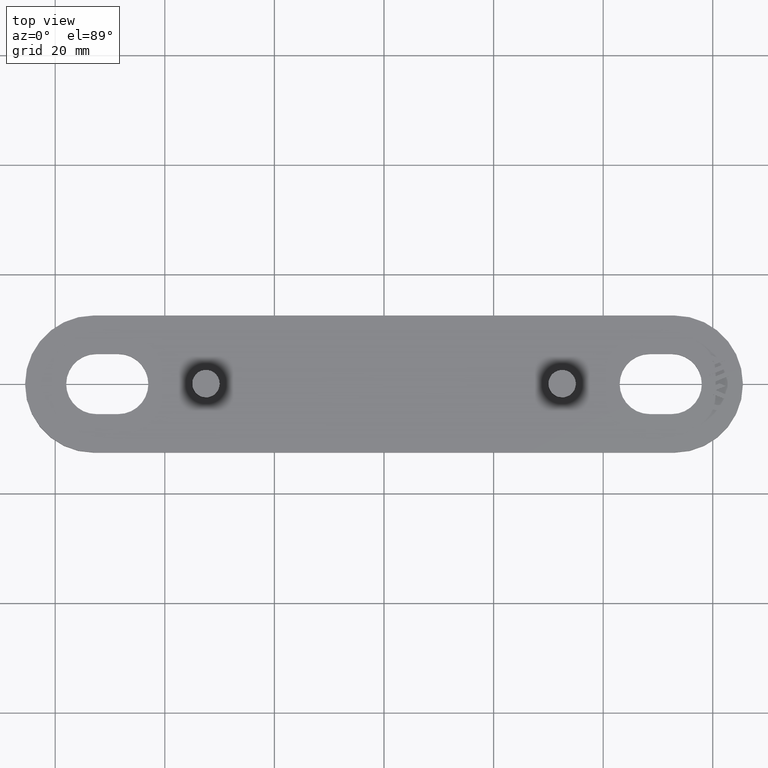
[diagram: clean part render]
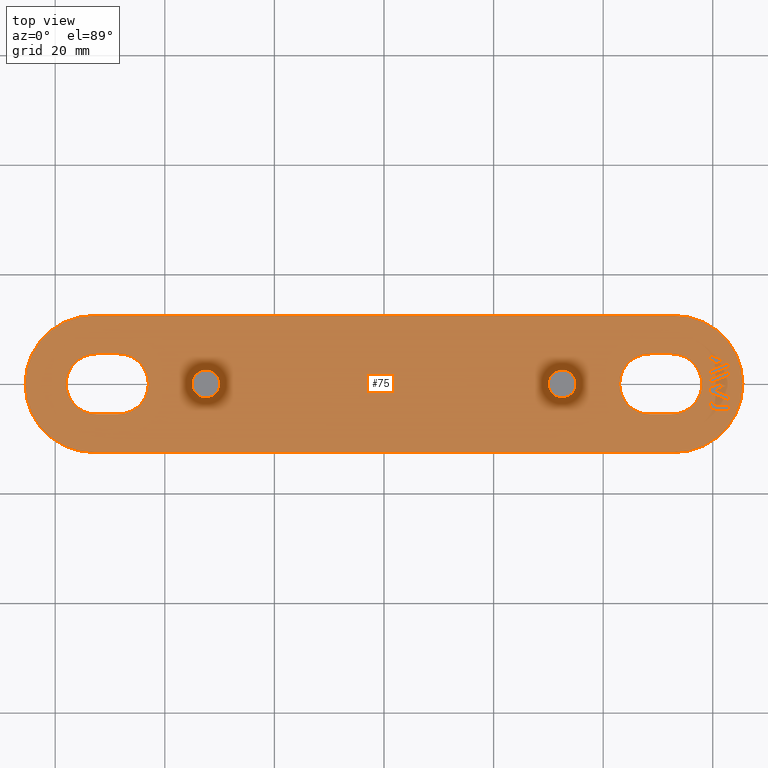
[diagram: same view with one face highlighted and labeled with its STEP entity id]
A machine part, top view. The second image highlights one B-rep face of the part: STEP entity #75.
In plain terms, the highlighted planar face has unit normal (0, -0, -1).
Its self-contained STEP definition (entity closure, byte-faithful):
#75 = ADVANCED_FACE( '', ( #147, #148, #149, #150, #151, #152, #153, #154, #155, #156 ), #157, .F. );
#147 = FACE_BOUND( '', #304, .T. );
#148 = FACE_BOUND( '', #305, .T. );
#149 = FACE_BOUND( '', #306, .T. );
#150 = FACE_BOUND( '', #307, .T. );
#151 = FACE_OUTER_BOUND( '', #308, .T. );
#152 = FACE_BOUND( '', #309, .T. );
#153 = FACE_BOUND( '', #310, .T. );
#154 = FACE_BOUND( '', #311, .T. );
#155 = FACE_BOUND( '', #312, .T. );
#156 = FACE_BOUND( '', #313, .T. );
#157 = PLANE( '', #314 );
#304 = EDGE_LOOP( '', ( #461, #462, #463, #464, #465, #466, #467 ) );
#305 = EDGE_LOOP( '', ( #468, #469, #470, #471 ) );
#306 = EDGE_LOOP( '', ( #472, #473, #474, #475, #476, #477 ) );
#307 = EDGE_LOOP( '', ( #478 ) );
#308 = EDGE_LOOP( '', ( #479, #480, #481, #482, #483, #484 ) );
#309 = EDGE_LOOP( '', ( #485 ) );
#310 = EDGE_LOOP( '', ( #486, #487, #488, #489, #490, #491 ) );
#311 = EDGE_LOOP( '', ( #492, #493, #494, #495, #496 ) );
#312 = EDGE_LOOP( '', ( #497, #498, #499, #500 ) );
#313 = EDGE_LOOP( '', ( #501, #502, #503, #504, #505, #506, #507, #508 ) );
#314 = AXIS2_PLACEMENT_3D( '', #509, #510, #511 );
#461 = ORIENTED_EDGE( '', *, *, #1030, .F. );
#462 = ORIENTED_EDGE( '', *, *, #1031, .F. );
#463 = ORIENTED_EDGE( '', *, *, #1032, .F. );
#464 = ORIENTED_EDGE( '', *, *, #1033, .F. );
#465 = ORIENTED_EDGE( '', *, *, #1034, .F. );
#466 = ORIENTED_EDGE( '', *, *, #1035, .F. );
#467 = ORIENTED_EDGE( '', *, *, #1036, .F. );
#468 = ORIENTED_EDGE( '', *, *, #1037, .F. );
#469 = ORIENTED_EDGE( '', *, *, #1038, .F. );
#470 = ORIENTED_EDGE( '', *, *, #1039, .F. );
#471 = ORIENTED_EDGE( '', *, *, #1040, .F. );
#472 = ORIENTED_EDGE( '', *, *, #1041, .F. );
#473 = ORIENTED_EDGE( '', *, *, #1042, .F. );
#474 = ORIENTED_EDGE( '', *, *, #1043, .F. );
#475 = ORIENTED_EDGE( '', *, *, #1044, .F. );
#476 = ORIENTED_EDGE( '', *, *, #1045, .F. );
#477 = ORIENTED_EDGE( '', *, *, #1046, .F. );
#478 = ORIENTED_EDGE( '', *, *, #1047, .F. );
#479 = ORIENTED_EDGE( '', *, *, #1048, .F. );
#480 = ORIENTED_EDGE( '', *, *, #1049, .F. );
#481 = ORIENTED_EDGE( '', *, *, #1050, .F. );
#482 = ORIENTED_EDGE( '', *, *, #1051, .F. );
#483 = ORIENTED_EDGE( '', *, *, #1052, .F. );
#484 = ORIENTED_EDGE( '', *, *, #1053, .F. );
#485 = ORIENTED_EDGE( '', *, *, #1054, .F. );
#486 = ORIENTED_EDGE( '', *, *, #1055, .F. );
#487 = ORIENTED_EDGE( '', *, *, #1056, .F. );
#488 = ORIENTED_EDGE( '', *, *, #1057, .F. );
#489 = ORIENTED_EDGE( '', *, *, #1058, .F. );
#490 = ORIENTED_EDGE( '', *, *, #1059, .F. );
#491 = ORIENTED_EDGE( '', *, *, #1060, .F. );
#492 = ORIENTED_EDGE( '', *, *, #1061, .F. );
#493 = ORIENTED_EDGE( '', *, *, #1062, .F. );
#494 = ORIENTED_EDGE( '', *, *, #1063, .F. );
#495 = ORIENTED_EDGE( '', *, *, #1064, .F. );
#496 = ORIENTED_EDGE( '', *, *, #1065, .F. );
#497 = ORIENTED_EDGE( '', *, *, #1066, .F. );
#498 = ORIENTED_EDGE( '', *, *, #1067, .F. );
#499 = ORIENTED_EDGE( '', *, *, #1068, .F. );
#500 = ORIENTED_EDGE( '', *, *, #1069, .F. );
#501 = ORIENTED_EDGE( '', *, *, #1070, .F. );
#502 = ORIENTED_EDGE( '', *, *, #1071, .F. );
#503 = ORIENTED_EDGE( '', *, *, #1072, .F. );
#504 = ORIENTED_EDGE( '', *, *, #1073, .F. );
#505 = ORIENTED_EDGE( '', *, *, #1074, .F. );
#506 = ORIENTED_EDGE( '', *, *, #1075, .F. );
#507 = ORIENTED_EDGE( '', *, *, #1076, .F. );
#508 = ORIENTED_EDGE( '', *, *, #1077, .F. );
#509 = CARTESIAN_POINT( '', ( 53.0000000000000, 1.83690953073356E-016, 2.99999999999999 ) );
#510 = DIRECTION( '', ( 0.000000000000000, -6.12303176911189E-017, -1.00000000000000 ) );
#511 = DIRECTION( '', ( 6.12303176911189E-017, 1.00000000000000, -6.12303176911189E-017 ) );
#1030 = EDGE_CURVE( '', #1208, #1209, #1210, .T. );
#1031 = EDGE_CURVE( '', #1211, #1208, #1212, .T. );
#1032 = EDGE_CURVE( '', #1213, #1211, #1214, .T. );
#1033 = EDGE_CURVE( '', #1215, #1213, #1216, .T. );
#1034 = EDGE_CURVE( '', #1217, #1215, #1218, .T. );
#1035 = EDGE_CURVE( '', #1219, #1217, #1220, .T. );
#1036 = EDGE_CURVE( '', #1209, #1219, #1221, .T. );
#1037 = EDGE_CURVE( '', #1222, #1223, #1224, .T. );
#1038 = EDGE_CURVE( '', #1225, #1222, #1226, .T. );
#1039 = EDGE_CURVE( '', #1227, #1225, #1228, .T. );
#1040 = EDGE_CURVE( '', #1223, #1227, #1229, .T. );
#1041 = EDGE_CURVE( '', #1230, #1231, #1232, .T. );
#1042 = EDGE_CURVE( '', #1233, #1230, #1234, .T. );
#1043 = EDGE_CURVE( '', #1235, #1233, #1236, .T. );
#1044 = EDGE_CURVE( '', #1237, #1235, #1238, .T. );
#1045 = EDGE_CURVE( '', #1239, #1237, #1240, .T. );
#1046 = EDGE_CURVE( '', #1231, #1239, #1241, .T. );
#1047 = EDGE_CURVE( '', #1242, #1242, #1243, .T. );
#1048 = EDGE_CURVE( '', #1244, #1245, #1246, .T. );
#1049 = EDGE_CURVE( '', #1247, #1244, #1248, .T. );
#1050 = EDGE_CURVE( '', #1249, #1247, #1250, .T. );
#1051 = EDGE_CURVE( '', #1251, #1249, #1252, .T. );
#1052 = EDGE_CURVE( '', #1253, #1251, #1254, .T. );
#1053 = EDGE_CURVE( '', #1245, #1253, #1255, .T. );
#1054 = EDGE_CURVE( '', #1256, #1256, #1257, .T. );
#1055 = EDGE_CURVE( '', #1258, #1259, #1260, .T. );
#1056 = EDGE_CURVE( '', #1261, #1258, #1262, .T. );
#1057 = EDGE_CURVE( '', #1263, #1261, #1264, .T. );
#1058 = EDGE_CURVE( '', #1265, #1263, #1266, .T. );
#1059 = EDGE_CURVE( '', #1267, #1265, #1268, .T. );
#1060 = EDGE_CURVE( '', #1259, #1267, #1269, .T. );
#1061 = EDGE_CURVE( '', #1270, #1271, #1272, .T. );
#1062 = EDGE_CURVE( '', #1273, #1270, #1274, .T. );
#1063 = EDGE_CURVE( '', #1275, #1273, #1276, .T. );
#1064 = EDGE_CURVE( '', #1277, #1275, #1278, .T. );
#1065 = EDGE_CURVE( '', #1271, #1277, #1279, .T. );
#1066 = EDGE_CURVE( '', #1280, #1281, #1282, .T. );
#1067 = EDGE_CURVE( '', #1283, #1280, #1284, .T. );
#1068 = EDGE_CURVE( '', #1285, #1283, #1286, .T. );
#1069 = EDGE_CURVE( '', #1281, #1285, #1287, .T. );
#1070 = EDGE_CURVE( '', #1288, #1289, #1290, .T. );
#1071 = EDGE_CURVE( '', #1291, #1288, #1292, .T. );
#1072 = EDGE_CURVE( '', #1293, #1291, #1294, .T. );
#1073 = EDGE_CURVE( '', #1295, #1293, #1296, .T. );
#1074 = EDGE_CURVE( '', #1297, #1295, #1298, .T. );
#1075 = EDGE_CURVE( '', #1299, #1297, #1300, .T. );
#1076 = EDGE_CURVE( '', #1301, #1299, #1302, .T. );
#1077 = EDGE_CURVE( '', #1289, #1301, #1303, .T. );
#1208 = VERTEX_POINT( '', #1506 );
#1209 = VERTEX_POINT( '', #1507 );
#1210 = LINE( '', #1508, #1509 );
#1211 = VERTEX_POINT( '', #1510 );
#1212 = LINE( '', #1511, #1512 );
#1213 = VERTEX_POINT( '', #1513 );
#1214 = LINE( '', #1514, #1515 );
#1215 = VERTEX_POINT( '', #1516 );
#1216 = LINE( '', #1517, #1518 );
#1217 = VERTEX_POINT( '', #1519 );
#1218 = LINE( '', #1520, #1521 );
#1219 = VERTEX_POINT( '', #1522 );
#1220 = LINE( '', #1523, #1524 );
#1221 = LINE( '', #1525, #1526 );
#1222 = VERTEX_POINT( '', #1527 );
#1223 = VERTEX_POINT( '', #1528 );
#1224 = LINE( '', #1529, #1530 );
#1225 = VERTEX_POINT( '', #1531 );
#1226 = LINE( '', #1532, #1533 );
#1227 = VERTEX_POINT( '', #1534 );
#1228 = LINE( '', #1535, #1536 );
#1229 = LINE( '', #1537, #1538 );
#1230 = VERTEX_POINT( '', #1539 );
#1231 = VERTEX_POINT( '', #1540 );
#1232 = LINE( '', #1541, #1542 );
#1233 = VERTEX_POINT( '', #1543 );
#1234 = CIRCLE( '', #1544, 5.50000000000000 );
#1235 = VERTEX_POINT( '', #1545 );
#1236 = CIRCLE( '', #1546, 5.50000000000000 );
#1237 = VERTEX_POINT( '', #1547 );
#1238 = LINE( '', #1548, #1549 );
#1239 = VERTEX_POINT( '', #1550 );
#1240 = CIRCLE( '', #1551, 5.50000000000000 );
#1241 = CIRCLE( '', #1552, 5.50000000000001 );
#1242 = VERTEX_POINT( '', #1553 );
#1243 = CIRCLE( '', #1554, 2.54363766232055 );
#1244 = VERTEX_POINT( '', #1555 );
#1245 = VERTEX_POINT( '', #1556 );
#1246 = LINE( '', #1557, #1558 );
#1247 = VERTEX_POINT( '', #1559 );
#1248 = CIRCLE( '', #1560, 12.5000000000000 );
#1249 = VERTEX_POINT( '', #1561 );
#1250 = CIRCLE( '', #1562, 12.5000000000000 );
#1251 = VERTEX_POINT( '', #1563 );
#1252 = LINE( '', #1564, #1565 );
#1253 = VERTEX_POINT( '', #1566 );
#1254 = CIRCLE( '', #1567, 12.5000000000000 );
#1255 = CIRCLE( '', #1568, 12.5000000000000 );
#1256 = VERTEX_POINT( '', #1569 );
#1257 = CIRCLE( '', #1570, 2.54363766232054 );
#1258 = VERTEX_POINT( '', #1571 );
#1259 = VERTEX_POINT( '', #1572 );
#1260 = LINE( '', #1573, #1574 );
#1261 = VERTEX_POINT( '', #1575 );
#1262 = CIRCLE( '', #1576, 5.50000000000000 );
#1263 = VERTEX_POINT( '', #1577 );
#1264 = CIRCLE( '', #1578, 5.50000000000000 );
#1265 = VERTEX_POINT( '', #1579 );
#1266 = LINE( '', #1580, #1581 );
#1267 = VERTEX_POINT( '', #1582 );
#1268 = CIRCLE( '', #1583, 5.50000000000000 );
#1269 = CIRCLE( '', #1584, 5.50000000000001 );
#1270 = VERTEX_POINT( '', #1585 );
#1271 = VERTEX_POINT( '', #1586 );
#1272 = LINE( '', #1587, #1588 );
#1273 = VERTEX_POINT( '', #1589 );
#1274 = LINE( '', #1590, #1591 );
#1275 = VERTEX_POINT( '', #1592 );
#1276 = LINE( '', #1593, #1594 );
#1277 = VERTEX_POINT( '', #1595 );
#1278 = LINE( '', #1596, #1597 );
#1279 = LINE( '', #1598, #1599 );
#1280 = VERTEX_POINT( '', #1600 );
#1281 = VERTEX_POINT( '', #1601 );
#1282 = LINE( '', #1602, #1603 );
#1283 = VERTEX_POINT( '', #1604 );
#1284 = LINE( '', #1605, #1606 );
#1285 = VERTEX_POINT( '', #1607 );
#1286 = LINE( '', #1608, #1609 );
#1287 = LINE( '', #1610, #1611 );
#1288 = VERTEX_POINT( '', #1612 );
#1289 = VERTEX_POINT( '', #1613 );
#1290 = CIRCLE( '', #1614, 1.19999999999999 );
#1291 = VERTEX_POINT( '', #1615 );
#1292 = LINE( '', #1616, #1617 );
#1293 = VERTEX_POINT( '', #1618 );
#1294 = LINE( '', #1619, #1620 );
#1295 = VERTEX_POINT( '', #1621 );
#1296 = LINE( '', #1622, #1623 );
#1297 = VERTEX_POINT( '', #1624 );
#1298 = CIRCLE( '', #1625, 0.800000000000002 );
#1299 = VERTEX_POINT( '', #1626 );
#1300 = LINE( '', #1627, #1628 );
#1301 = VERTEX_POINT( '', #1629 );
#1302 = LINE( '', #1630, #1631 );
#1303 = LINE( '', #1632, #1633 );
#1506 = CARTESIAN_POINT( '', ( 59.4000000000000, -1.65153815900081, 2.99999999999999 ) );
#1507 = CARTESIAN_POINT( '', ( 62.9973661704647, -3.10489558569054, 2.99999999999999 ) );
#1508 = CARTESIAN_POINT( '', ( 59.4000000000000, -1.65153815900081, 2.99999999999999 ) );
#1509 = VECTOR( '', #1950, 1000.00000000000 );
#1510 = CARTESIAN_POINT( '', ( 59.4000000000000, -0.668868987414770, 2.99999999999999 ) );
#1511 = CARTESIAN_POINT( '', ( 59.4000000000000, -0.668868987414772, 2.99999999999999 ) );
#1512 = VECTOR( '', #1951, 1000.00000000000 );
#1513 = CARTESIAN_POINT( '', ( 61.2327570440905, 0.0717422425350015, 2.99999999999999 ) );
#1514 = CARTESIAN_POINT( '', ( 61.2327570440905, 0.0717422425350067, 2.99999999999999 ) );
#1515 = VECTOR( '', #1952, 1000.00000000000 );
#1516 = CARTESIAN_POINT( '', ( 62.3833737475896, -0.393055647481195, 2.99999999999999 ) );
#1517 = CARTESIAN_POINT( '', ( 62.3833737475896, -0.393055647481199, 2.99999999999999 ) );
#1518 = VECTOR( '', #1953, 1000.00000000000 );
#1519 = CARTESIAN_POINT( '', ( 60.4849571645034, -1.16010139340525, 2.99999999999999 ) );
#1520 = CARTESIAN_POINT( '', ( 60.4849571645034, -1.16010139340525, 2.99999999999999 ) );
#1521 = VECTOR( '', #1954, 1000.00000000000 );
#1522 = CARTESIAN_POINT( '', ( 62.9973661704647, -2.17529980565815, 2.99999999999999 ) );
#1523 = CARTESIAN_POINT( '', ( 62.9973661704647, -2.17529980565814, 2.99999999999999 ) );
#1524 = VECTOR( '', #1955, 1000.00000000000 );
#1525 = CARTESIAN_POINT( '', ( 62.9973661704647, -3.10489558569054, 2.99999999999999 ) );
#1526 = VECTOR( '', #1956, 1000.00000000000 );
#1527 = CARTESIAN_POINT( '', ( 59.4000000000000, 1.59847678860037, 2.99999999999999 ) );
#1528 = CARTESIAN_POINT( '', ( 62.9973661704647, 3.05206261720166, 2.99999999999999 ) );
#1529 = CARTESIAN_POINT( '', ( 59.4000000000000, 1.59847678860037, 2.99999999999999 ) );
#1530 = VECTOR( '', #1957, 1000.00000000000 );
#1531 = CARTESIAN_POINT( '', ( 59.4000000000000, 2.52799443113671, 2.99999999999999 ) );
#1532 = CARTESIAN_POINT( '', ( 59.4000000000000, 2.52799443113671, 2.99999999999999 ) );
#1533 = VECTOR( '', #1958, 1000.00000000000 );
#1534 = CARTESIAN_POINT( '', ( 62.9973661704647, 3.98137590013292, 2.99999999999999 ) );
#1535 = CARTESIAN_POINT( '', ( 62.9973661704647, 3.98137590013292, 2.99999999999999 ) );
#1536 = VECTOR( '', #1959, 1000.00000000000 );
#1537 = CARTESIAN_POINT( '', ( 62.9973661704647, 3.05206261720166, 2.99999999999999 ) );
#1538 = VECTOR( '', #1960, 1000.00000000000 );
#1539 = CARTESIAN_POINT( '', ( 52.5000000000000, 5.50000000000000, 3.00000299996163 ) );
#1540 = CARTESIAN_POINT( '', ( 48.5000000000000, 5.50000000000001, 3.00000299996163 ) );
#1541 = CARTESIAN_POINT( '', ( 52.5000000000000, 5.50000000000000, 3.00000299996163 ) );
#1542 = VECTOR( '', #1961, 1000.00000000000 );
#1543 = CARTESIAN_POINT( '', ( 58.0000000000000, 3.65313808871557E-015, 3.00000299996163 ) );
#1544 = AXIS2_PLACEMENT_3D( '', #1962, #1963, #1964 );
#1545 = CARTESIAN_POINT( '', ( 52.5000000000000, -5.50000000000000, 3.00000299996163 ) );
#1546 = AXIS2_PLACEMENT_3D( '', #1965, #1966, #1967 );
#1547 = CARTESIAN_POINT( '', ( 48.5000000000000, -5.50000000000000, 3.00000299996163 ) );
#1548 = CARTESIAN_POINT( '', ( 48.5000000000000, -5.50000000000000, 3.00000299996163 ) );
#1549 = VECTOR( '', #1968, 1000.00000000000 );
#1550 = CARTESIAN_POINT( '', ( 43.0000000000000, 1.05105287475036E-015, 3.00000299996163 ) );
#1551 = AXIS2_PLACEMENT_3D( '', #1969, #1970, #1971 );
#1552 = AXIS2_PLACEMENT_3D( '', #1972, #1973, #1974 );
#1553 = CARTESIAN_POINT( '', ( 32.4999999999999, -2.54363766232054, 2.99999999999998 ) );
#1554 = AXIS2_PLACEMENT_3D( '', #1975, #1976, #1977 );
#1555 = CARTESIAN_POINT( '', ( -53.0000000000000, 12.5000000000000, 2.99999999999999 ) );
#1556 = CARTESIAN_POINT( '', ( 53.0000000000000, 12.5000000000000, 2.99999999999999 ) );
#1557 = CARTESIAN_POINT( '', ( -53.0000000000000, 12.5000000000000, 2.99999999999999 ) );
#1558 = VECTOR( '', #1978, 1000.00000000000 );
#1559 = CARTESIAN_POINT( '', ( -65.5000000000000, -1.55103252290345E-015, 2.99999999999999 ) );
#1560 = AXIS2_PLACEMENT_3D( '', #1979, #1980, #1981 );
#1561 = CARTESIAN_POINT( '', ( -53.0000000000000, -12.5000000000000, 2.99999999999999 ) );
#1562 = AXIS2_PLACEMENT_3D( '', #1982, #1983, #1984 );
#1563 = CARTESIAN_POINT( '', ( 53.0000000000000, -12.5000000000000, 2.99999999999999 ) );
#1564 = CARTESIAN_POINT( '', ( 53.0000000000000, -12.5000000000000, 2.99999999999999 ) );
#1565 = VECTOR( '', #1985, 1000.00000000000 );
#1566 = CARTESIAN_POINT( '', ( 65.5000000000000, 1.83690953073356E-016, 2.99999999999999 ) );
#1567 = AXIS2_PLACEMENT_3D( '', #1986, #1987, #1988 );
#1568 = AXIS2_PLACEMENT_3D( '', #1989, #1990, #1991 );
#1569 = CARTESIAN_POINT( '', ( -32.5000000000000, -2.54363766232055, 2.99999999999998 ) );
#1570 = AXIS2_PLACEMENT_3D( '', #1992, #1993, #1994 );
#1571 = CARTESIAN_POINT( '', ( -48.5000000000000, 5.50000000000000, 3.00000299996163 ) );
#1572 = CARTESIAN_POINT( '', ( -52.5000000000000, 5.50000000000000, 3.00000299996163 ) );
#1573 = CARTESIAN_POINT( '', ( -48.5000000000000, 5.50000000000000, 3.00000299996163 ) );
#1574 = VECTOR( '', #1995, 1000.00000000000 );
#1575 = CARTESIAN_POINT( '', ( -43.0000000000000, -2.41839407720325E-015, 3.00000299996163 ) );
#1576 = AXIS2_PLACEMENT_3D( '', #1996, #1997, #1998 );
#1577 = CARTESIAN_POINT( '', ( -48.5000000000000, -5.50000000000001, 3.00000299996163 ) );
#1578 = AXIS2_PLACEMENT_3D( '', #1999, #2000, #2001 );
#1579 = CARTESIAN_POINT( '', ( -52.5000000000000, -5.50000000000001, 3.00000299996163 ) );
#1580 = CARTESIAN_POINT( '', ( -52.5000000000000, -5.50000000000001, 3.00000299996163 ) );
#1581 = VECTOR( '', #2002, 1000.00000000000 );
#1582 = CARTESIAN_POINT( '', ( -58.0000000000000, -5.02047929116846E-015, 3.00000299996163 ) );
#1583 = AXIS2_PLACEMENT_3D( '', #2003, #2004, #2005 );
#1584 = AXIS2_PLACEMENT_3D( '', #2006, #2007, #2008 );
#1585 = CARTESIAN_POINT( '', ( 59.4000000000000, 4.42597825270628, 2.99999999999999 ) );
#1586 = CARTESIAN_POINT( '', ( 60.2308540273208, 4.09004712542055, 2.99999999999999 ) );
#1587 = CARTESIAN_POINT( '', ( 59.4000000000000, 4.42597825270628, 2.99999999999999 ) );
#1588 = VECTOR( '', #2009, 1000.00000000000 );
#1589 = CARTESIAN_POINT( '', ( 59.4000000000000, 5.35529153563755, 2.99999999999999 ) );
#1590 = CARTESIAN_POINT( '', ( 59.4000000000000, 5.35529153563755, 2.99999999999999 ) );
#1591 = VECTOR( '', #2010, 1000.00000000000 );
#1592 = CARTESIAN_POINT( '', ( 62.0972101947165, 4.26568819540702, 2.99999999999999 ) );
#1593 = CARTESIAN_POINT( '', ( 62.0972101947166, 4.26568819540702, 2.99999999999999 ) );
#1594 = VECTOR( '', #2011, 1000.00000000000 );
#1595 = CARTESIAN_POINT( '', ( 60.2308540273208, 3.51197991900250, 2.99999999999999 ) );
#1596 = CARTESIAN_POINT( '', ( 60.2308540273208, 3.51197991900251, 2.99999999999999 ) );
#1597 = VECTOR( '', #2012, 1000.00000000000 );
#1598 = CARTESIAN_POINT( '', ( 60.2308540273208, 4.09004712542055, 2.99999999999999 ) );
#1599 = VECTOR( '', #2013, 1000.00000000000 );
#1600 = CARTESIAN_POINT( '', ( 59.4000000000000, -1.80309055446831E-014, 2.99999999999999 ) );
#1601 = CARTESIAN_POINT( '', ( 62.9973661704647, 1.45358582860127, 2.99999999999999 ) );
#1602 = CARTESIAN_POINT( '', ( 59.4000000000000, -1.54288203307179E-014, 2.99999999999999 ) );
#1603 = VECTOR( '', #2014, 1000.00000000000 );
#1604 = CARTESIAN_POINT( '', ( 59.4000000000000, 0.929583758879141, 2.99999999999999 ) );
#1605 = CARTESIAN_POINT( '', ( 59.4000000000000, 0.929583758879139, 2.99999999999999 ) );
#1606 = VECTOR( '', #2015, 1000.00000000000 );
#1607 = CARTESIAN_POINT( '', ( 62.9973661704647, 2.38316958748042, 2.99999999999999 ) );
#1608 = CARTESIAN_POINT( '', ( 62.9973661704647, 2.38316958748043, 2.99999999999999 ) );
#1609 = VECTOR( '', #2016, 1000.00000000000 );
#1610 = CARTESIAN_POINT( '', ( 62.9973661704647, 1.45358582860127, 2.99999999999999 ) );
#1611 = VECTOR( '', #2017, 1000.00000000000 );
#1612 = CARTESIAN_POINT( '', ( 59.4000000000000, -3.58288028181887, 2.99999999999999 ) );
#1613 = CARTESIAN_POINT( '', ( 60.6000000000000, -4.78288028181885, 2.99999999999999 ) );
#1614 = AXIS2_PLACEMENT_3D( '', #2018, #2019, #2020 );
#1615 = CARTESIAN_POINT( '', ( 59.4000000000000, -2.32040714641556, 2.99999999999999 ) );
#1616 = CARTESIAN_POINT( '', ( 59.4000000000000, -2.32040714641556, 2.99999999999999 ) );
#1617 = VECTOR( '', #2021, 1000.00000000000 );
#1618 = CARTESIAN_POINT( '', ( 59.9231249674404, -2.53176335265063, 2.99999999999999 ) );
#1619 = CARTESIAN_POINT( '', ( 59.9231249674404, -2.53176335265062, 2.99999999999999 ) );
#1620 = VECTOR( '', #2022, 1000.00000000000 );
#1621 = CARTESIAN_POINT( '', ( 59.9231249674404, -3.04274195062399, 2.99999999999999 ) );
#1622 = CARTESIAN_POINT( '', ( 59.9231249674404, -3.04274195062399, 2.99999999999999 ) );
#1623 = VECTOR( '', #2023, 1000.00000000000 );
#1624 = CARTESIAN_POINT( '', ( 60.7231249674404, -3.84274195062399, 2.99999999999999 ) );
#1625 = AXIS2_PLACEMENT_3D( '', #2024, #2025, #2026 );
#1626 = CARTESIAN_POINT( '', ( 62.9973661704647, -3.84274195062398, 2.99999999999999 ) );
#1627 = CARTESIAN_POINT( '', ( 62.9973661704647, -3.84274195062399, 2.99999999999999 ) );
#1628 = VECTOR( '', #2027, 1000.00000000000 );
#1629 = CARTESIAN_POINT( '', ( 62.9973661704647, -4.78288028181885, 2.99999999999999 ) );
#1630 = CARTESIAN_POINT( '', ( 62.9973661704647, -4.78288028181885, 2.99999999999999 ) );
#1631 = VECTOR( '', #2028, 1000.00000000000 );
#1632 = CARTESIAN_POINT( '', ( 60.6000000000000, -4.78288028181885, 2.99999999999999 ) );
#1633 = VECTOR( '', #2029, 1000.00000000000 );
#1950 = DIRECTION( '', ( 0.927190376050330, -0.374590451773198, -7.97084536518423E-017 ) );
#1951 = DIRECTION( '', ( -3.06151588455594E-016, -1.00000000000000, -6.12303176911189E-017 ) );
#1952 = DIRECTION( '', ( -0.927161130553612, -0.374662832411421, 3.38296463190488E-017 ) );
#1953 = DIRECTION( '', ( -0.927206645422846, 0.374550179126525, 7.97069839237401E-017 ) );
#1954 = DIRECTION( '', ( 0.927177805503197, 0.374621565025663, -3.38331941466496E-017 ) );
#1955 = DIRECTION( '', ( -0.927168564368796, 0.374644435760503, 7.97104235723455E-017 ) );
#1956 = DIRECTION( '', ( 3.06151588455594E-016, 1.00000000000000, 6.12303176911189E-017 ) );
#1957 = DIRECTION( '', ( 0.927169929060563, 0.374641058409019, -3.38315182835091E-017 ) );
#1958 = DIRECTION( '', ( -3.06151588455594E-016, -1.00000000000000, -6.12303176911188E-017 ) );
#1959 = DIRECTION( '', ( -0.927188223823227, -0.374595778945159, 3.38354109535961E-017 ) );
#1960 = DIRECTION( '', ( 3.06151588455594E-016, 1.00000000000000, 6.12303176911189E-017 ) );
#1961 = DIRECTION( '', ( -1.00000000000000, -5.78241158658935E-017, 3.54058898467673E-033 ) );
#1962 = CARTESIAN_POINT( '', ( 52.5000000000000, 4.52049982670398E-015, 3.00000299996163 ) );
#1963 = DIRECTION( '', ( 0.000000000000000, 6.12303176911189E-017, 1.00000000000000 ) );
#1964 = DIRECTION( '', ( 2.59888188936470E-017, 1.00000000000000, -6.12303176911189E-017 ) );
#1965 = CARTESIAN_POINT( '', ( 52.5000000000000, 3.65313808871557E-015, 3.00000299996163 ) );
#1966 = DIRECTION( '', ( -1.80952797562606E-049, 6.12303176911189E-017, 1.00000000000000 ) );
#1967 = DIRECTION( '', ( 1.00000000000000, -2.59888188936470E-017, 1.59130363727496E-033 ) );
#1968 = DIRECTION( '', ( 1.00000000000000, 5.78241158658935E-017, -3.54058898467673E-033 ) );
#1969 = CARTESIAN_POINT( '', ( 48.5000000000000, 1.05105287475036E-015, 3.00000299996163 ) );
#1970 = DIRECTION( '', ( -1.80952797562606E-049, 6.12303176911189E-017, 1.00000000000000 ) );
#1971 = DIRECTION( '', ( -2.59888188936470E-017, -1.00000000000000, 6.12303176911189E-017 ) );
#1972 = CARTESIAN_POINT( '', ( 48.5000000000000, 1.91841461273877E-015, 3.00000299996163 ) );
#1973 = DIRECTION( '', ( 0.000000000000000, 6.12303176911189E-017, 1.00000000000000 ) );
#1974 = DIRECTION( '', ( -1.00000000000000, -1.31713315286063E-016, 8.06484813911612E-033 ) );
#1975 = CARTESIAN_POINT( '', ( 32.4999999999999, 3.09387931940472E-015, 2.99999999999998 ) );
#1976 = DIRECTION( '', ( 0.000000000000000, 6.12303176911189E-017, 1.00000000000000 ) );
#1977 = DIRECTION( '', ( 0.000000000000000, -1.00000000000000, 6.12303176911189E-017 ) );
#1978 = DIRECTION( '', ( 1.00000000000000, 0.000000000000000, 0.000000000000000 ) );
#1979 = CARTESIAN_POINT( '', ( -53.0000000000000, 1.83690953073356E-016, 2.99999999999999 ) );
#1980 = DIRECTION( '', ( 5.60519385729927E-049, -6.12303176911189E-017, -1.00000000000000 ) );
#1981 = DIRECTION( '', ( 6.12303176911189E-017, 1.00000000000000, -6.12303176911189E-017 ) );
#1982 = CARTESIAN_POINT( '', ( -53.0000000000000, 1.83690953073356E-016, 2.99999999999999 ) );
#1983 = DIRECTION( '', ( 5.60519385729927E-049, -6.12303176911189E-017, -1.00000000000000 ) );
#1984 = DIRECTION( '', ( 6.12303176911189E-017, 1.00000000000000, -6.12303176911189E-017 ) );
#1985 = DIRECTION( '', ( -1.00000000000000, 0.000000000000000, 0.000000000000000 ) );
#1986 = CARTESIAN_POINT( '', ( 53.0000000000000, 1.83690953073356E-016, 2.99999999999999 ) );
#1987 = DIRECTION( '', ( 5.60519385729927E-049, -6.12303176911189E-017, -1.00000000000000 ) );
#1988 = DIRECTION( '', ( 6.12303176911189E-017, 1.00000000000000, -6.12303176911189E-017 ) );
#1989 = CARTESIAN_POINT( '', ( 53.0000000000000, 1.83690953073356E-016, 2.99999999999999 ) );
#1990 = DIRECTION( '', ( 5.60519385729927E-049, -6.12303176911189E-017, -1.00000000000000 ) );
#1991 = DIRECTION( '', ( 6.12303176911189E-017, 1.00000000000000, -6.12303176911189E-017 ) );
#1992 = CARTESIAN_POINT( '', ( -32.5000000000000, -2.18439632701495E-015, 2.99999999999998 ) );
#1993 = DIRECTION( '', ( 0.000000000000000, 6.12303176911189E-017, 1.00000000000000 ) );
#1994 = DIRECTION( '', ( 0.000000000000000, -1.00000000000000, 6.12303176911189E-017 ) );
#1995 = DIRECTION( '', ( -1.00000000000000, -1.15648231731787E-016, 7.08117796935346E-033 ) );
#1996 = CARTESIAN_POINT( '', ( -48.5000000000000, -2.41839407720325E-015, 3.00000299996163 ) );
#1997 = DIRECTION( '', ( 2.89524476100169E-048, 6.12303176911189E-017, 1.00000000000000 ) );
#1998 = DIRECTION( '', ( 1.83690953073357E-016, 1.00000000000000, -6.12303176911189E-017 ) );
#1999 = CARTESIAN_POINT( '', ( -48.5000000000000, -3.28575581519165E-015, 3.00000299996163 ) );
#2000 = DIRECTION( '', ( 1.44762238050085E-048, 6.12303176911189E-017, 1.00000000000000 ) );
#2001 = DIRECTION( '', ( 1.00000000000000, 1.31713315286063E-016, -8.06484813911614E-033 ) );
#2002 = DIRECTION( '', ( 1.00000000000000, 1.15648231731787E-016, -7.08117796935346E-033 ) );
#2003 = CARTESIAN_POINT( '', ( -52.5000000000000, -5.88784102915687E-015, 3.00000299996163 ) );
#2004 = DIRECTION( '', ( 0.000000000000000, 6.12303176911189E-017, 1.00000000000000 ) );
#2005 = DIRECTION( '', ( -1.83690953073357E-016, -1.00000000000000, 6.12303176911189E-017 ) );
#2006 = CARTESIAN_POINT( '', ( -52.5000000000000, -5.02047929116846E-015, 3.00000299996163 ) );
#2007 = DIRECTION( '', ( -3.61905595125210E-049, 6.12303176911189E-017, 1.00000000000000 ) );
#2008 = DIRECTION( '', ( -1.00000000000000, 2.59888188936470E-017, -1.59130363727496E-033 ) );
#2009 = DIRECTION( '', ( 0.927089140205383, -0.374840934415179, -7.97175920806390E-017 ) );
#2010 = DIRECTION( '', ( -2.50640437224336E-016, -1.00000000000000, -6.12303176911189E-017 ) );
#2011 = DIRECTION( '', ( -0.927200607094025, 0.374565126786346, 7.97075294449076E-017 ) );
#2012 = DIRECTION( '', ( 0.927243990558706, 0.374457717202845, -3.38472791328690E-017 ) );
#2013 = DIRECTION( '', ( -3.06151588455594E-016, -1.00000000000000, -6.12303176911188E-017 ) );
#2014 = DIRECTION( '', ( 0.927169929060563, 0.374641058409019, -3.38315182835092E-017 ) );
#2015 = DIRECTION( '', ( -5.28196193380626E-016, -1.00000000000000, -6.12303176911188E-017 ) );
#2016 = DIRECTION( '', ( -0.927169929060563, -0.374641058409019, 3.38315182835091E-017 ) );
#2017 = DIRECTION( '', ( 5.28196193380626E-016, 1.00000000000000, 6.12303176911189E-017 ) );
#2018 = CARTESIAN_POINT( '', ( 60.6000000000000, -3.58288028181886, 2.99999999999999 ) );
#2019 = DIRECTION( '', ( -3.80126536546450E-048, 6.12303176911189E-017, 1.00000000000000 ) );
#2020 = DIRECTION( '', ( -1.00000000000000, 3.06151588455594E-016, -1.87457590227767E-032 ) );
#2021 = DIRECTION( '', ( -3.06151588455594E-016, -1.00000000000000, -6.12303176911189E-017 ) );
#2022 = DIRECTION( '', ( -0.927183854566787, 0.374606593415912, 7.97090426972446E-017 ) );
#2023 = DIRECTION( '', ( 3.06151588455594E-016, 1.00000000000000, 6.12303176911189E-017 ) );
#2024 = CARTESIAN_POINT( '', ( 60.7231249674404, -3.04274195062399, 2.99999999999999 ) );
#2025 = DIRECTION( '', ( 0.000000000000000, -6.12303176911189E-017, -1.00000000000000 ) );
#2026 = DIRECTION( '', ( -3.06151588455594E-016, -1.00000000000000, 6.12303176911189E-017 ) );
#2027 = DIRECTION( '', ( -1.00000000000000, 3.66866910114783E-016, 6.12303176911189E-017 ) );
#2028 = DIRECTION( '', ( 3.06151588455594E-016, 1.00000000000000, 6.12303176911188E-017 ) );
#2029 = DIRECTION( '', ( 1.00000000000000, -3.66866910114783E-016, -6.12303176911188E-017 ) );